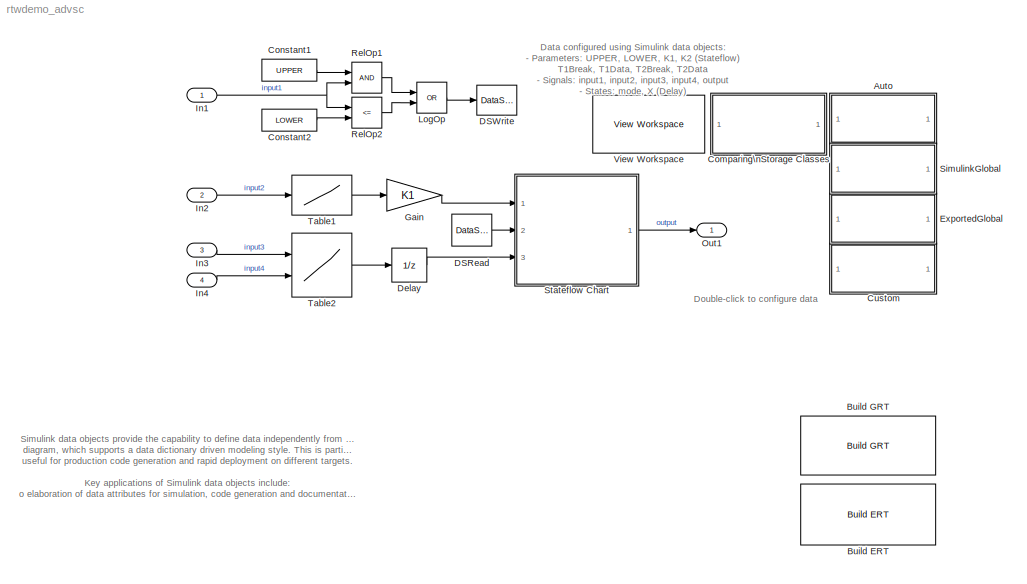
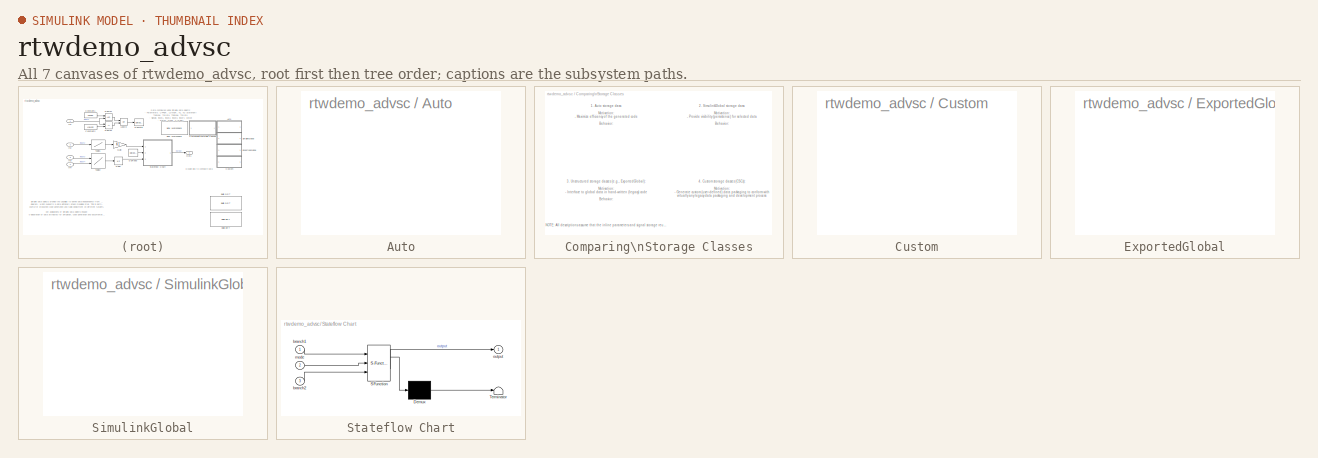
[diagram: thumbnail index - all 7 canvases of the model, root first then tree order]
MODEL rtwdemo_advsc
KIND model
CONFIG PostLoadFcn = open_system('rtwdemo_advsc/Auto');
BLOCK [SubSystem] Auto
  MaskCallbackString = |
  MaskDescription = OpenFcn creates data with the specified storage class for data packaging demo.
  MaskDisplay = disp([StorageClass, '\\nStorage Class']);
  MaskEnableString = on,on
  MaskIconFrame = on
  MaskIconOpaque = on
  MaskIconRotate = none
  MaskIconUnits = autoscale
  MaskInitialization = dispStr = 'Initialize data with\\nStorageClass: ';\ndispStr = [dispStr, StorageClass];\n
  MaskPromptString = StorageClass|DataInitFcn
  MaskStyleString = popup(Auto|SimulinkGlobal|ExportedGlobal|Custom),edit
  MaskTabNameString = ,
  MaskToolTipString = on,on
  MaskTunableValueString = off,off
  MaskType = Advanced data packaging - create data
  MaskValueString = Auto|rtwdemo_advsc_init
  MaskVarAliasString = ,
  MaskVariables = StorageClass=&1;DataInitFcn=&2;
  MaskVisibilityString = on,on
  MinAlgLoopOccurrences = off
  OpenFcn = feval(get_param(gcb, 'DataInitFcn'), get_param(gcb, 'StorageClass'));
  Ports = []
  PropExecContextAcrossSSBoundary = on
  RTWSystemCode = Auto
  TreatAsAtomicUnit = off
BLOCK [Reference] Build ERT  REF=rtwdemowidgets/Build ERT
  Ports = []
  ShowPortLabels = on
  SourceBlock = rtwdemowidgets/Build ERT
  attrib_overrides = {}
BLOCK [Reference] Build GRT  REF=rtwdemowidgets/Build GRT
  Ports = []
  ShowPortLabels = on
  SourceBlock = rtwdemowidgets/Build GRT
  attrib_overrides = {}
BLOCK [SubSystem] Comparing\nStorage Classes
  MaskDisplay = disp(['Compare the\\noptions ..', '.\\n(double-click)']);
  MaskIconFrame = on
  MaskIconOpaque = on
  MaskIconRotate = none
  MaskIconUnits = autoscale
  MinAlgLoopOccurrences = off
  Ports = []
  PropExecContextAcrossSSBoundary = on
  RTWSystemCode = Auto
  TreatAsAtomicUnit = off
BLOCK [Constant] Constant1
  Value = UPPER
BLOCK [Constant] Constant2
  Value = LOWER
BLOCK [SubSystem] Custom
  MaskCallbackString = |
  MaskDescription = OpenFcn creates data with the specified storage class for data packaging demo.
  MaskDisplay = disp([StorageClass, '\\nStorage Class']);
  MaskEnableString = on,on
  MaskIconFrame = on
  MaskIconOpaque = on
  MaskIconRotate = none
  MaskIconUnits = autoscale
  MaskInitialization = dispStr = 'Initialize data with\\nStorageClass: ';\ndispStr = [dispStr, StorageClass];\n
  MaskPromptString = StorageClass|DataInitFcn
  MaskStyleString = popup(Auto|SimulinkGlobal|ExportedGlobal|Custom),edit
  MaskTabNameString = ,
  MaskToolTipString = on,on
  MaskTunableValueString = off,off
  MaskType = Advanced data packaging - create data
  MaskValueString = Custom|rtwdemo_advsc_init
  MaskVarAliasString = ,
  MaskVariables = StorageClass=&1;DataInitFcn=&2;
  MaskVisibilityString = on,on
  MinAlgLoopOccurrences = off
  OpenFcn = feval(get_param(gcb, 'DataInitFcn'), get_param(gcb, 'StorageClass'));
  Ports = []
  PropExecContextAcrossSSBoundary = on
  RTWSystemCode = Auto
  TreatAsAtomicUnit = off
BLOCK [DataStoreRead] DSRead
  DataStoreName = mode
  DialogController = Simulink.DDGSource
  SampleTime = 1
BLOCK [DataStoreWrite] DSWrite
  DataStoreName = mode
  DialogController = Simulink.DDGSource
  SampleTime = -1
BLOCK [UnitDelay] Delay
  StateIdentifier = X
  StateMustResolveToSignalObject = on
BLOCK [SubSystem] ExportedGlobal
  MaskCallbackString = |
  MaskDescription = OpenFcn creates data with the specified storage class for data packaging demo.
  MaskDisplay = disp([StorageClass, '\\nStorage Class']);
  MaskEnableString = on,on
  MaskIconFrame = on
  MaskIconOpaque = on
  MaskIconRotate = none
  MaskIconUnits = autoscale
  MaskInitialization = dispStr = 'Initialize data with\\nStorageClass: ';\ndispStr = [dispStr, StorageClass];\n
  MaskPromptString = StorageClass|DataInitFcn
  MaskStyleString = popup(Auto|SimulinkGlobal|ExportedGlobal|Custom),edit
  MaskTabNameString = ,
  MaskToolTipString = on,on
  MaskTunableValueString = off,off
  MaskType = Advanced data packaging - create data
  MaskValueString = ExportedGlobal|rtwdemo_advsc_init
  MaskVarAliasString = ,
  MaskVariables = StorageClass=&1;DataInitFcn=&2;
  MaskVisibilityString = on,on
  MinAlgLoopOccurrences = off
  OpenFcn = feval(get_param(gcb, 'DataInitFcn'), get_param(gcb, 'StorageClass'));
  Ports = []
  PropExecContextAcrossSSBoundary = on
  RTWSystemCode = Auto
  TreatAsAtomicUnit = off
BLOCK [Gain] Gain
  Gain = K1
BLOCK [Inport] In1
  IconDisplay = Port number
  LatchInput = off
  Port = 1
  PortDimensions = 1
  SampleTime = 1
BLOCK [Inport] In2
  IconDisplay = Port number
  LatchInput = off
  Port = 2
  PortDimensions = 1
BLOCK [Inport] In3
  IconDisplay = Port number
  LatchInput = off
  Port = 3
  PortDimensions = 1
BLOCK [Inport] In4
  IconDisplay = Port number
  LatchInput = off
  Port = 4
  PortDimensions = 1
BLOCK [Logic] LogOp
  Operator = OR
  Ports = [2, 1]
BLOCK [Outport] Out1
  BusOutputAsStruct = off
  IconDisplay = Port number
BLOCK [RelationalOperator] RelOp1
BLOCK [RelationalOperator] RelOp2
  Operator = <=
BLOCK [SubSystem] SimulinkGlobal
  MaskCallbackString = |
  MaskDescription = OpenFcn creates data with the specified storage class for data packaging demo.
  MaskDisplay = disp([StorageClass, '\\nStorage Class']);
  MaskEnableString = on,on
  MaskIconFrame = on
  MaskIconOpaque = on
  MaskIconRotate = none
  MaskIconUnits = autoscale
  MaskInitialization = dispStr = 'Initialize data with\\nStorageClass: ';\ndispStr = [dispStr, StorageClass];\n
  MaskPromptString = StorageClass|DataInitFcn
  MaskStyleString = popup(Auto|SimulinkGlobal|ExportedGlobal|Custom),edit
  MaskTabNameString = ,
  MaskToolTipString = on,on
  MaskTunableValueString = off,off
  MaskType = Advanced data packaging - create data
  MaskValueString = SimulinkGlobal|rtwdemo_advsc_init
  MaskVarAliasString = ,
  MaskVariables = StorageClass=&1;DataInitFcn=&2;
  MaskVisibilityString = on,on
  MinAlgLoopOccurrences = off
  OpenFcn = feval(get_param(gcb, 'DataInitFcn'), get_param(gcb, 'StorageClass'));
  Ports = []
  PropExecContextAcrossSSBoundary = on
  RTWSystemCode = Auto
  TreatAsAtomicUnit = off
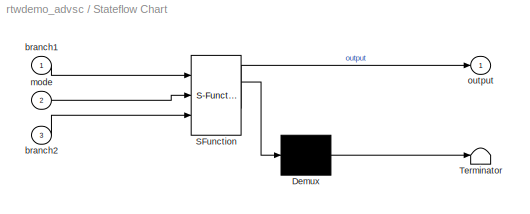
BLOCK [SubSystem] Stateflow Chart
  MaskDescription = Stateflow diagram
  MaskDisplay = plot(sf('Private','sfblk','xIcon'),sf('Private','sfblk','yIcon'));text(0.5,0,sf('Private', 'sfblk', 'tIcon'),'HorizontalAl','Center','VerticalAl','Bottom');
  MaskIconFrame = off
  MaskIconOpaque = off
  MaskIconRotate = none
  MaskIconUnits = autoscale
  MaskSelfModifiable = on
  MaskType = Stateflow
  MinAlgLoopOccurrences = off
  PermitHierarchicalResolution = ParametersOnly
  Ports = [3, 1]
  PropExecContextAcrossSSBoundary = on
  RTWSystemCode = Auto
  TreatAsAtomicUnit = off
BLOCK [Demux] Stateflow Chart/ Demux 
  Outputs = 1
  Ports = [1, 1]
BLOCK [S-Function] Stateflow Chart/ SFunction 
  FunctionName = sf_sfun
  Parameters = K2
  PortCounts = [3 2]
  Ports = [3, 2]
  Tag = Stateflow S-Function rtwdemo_advsc 1
BLOCK [Terminator] Stateflow Chart/ Terminator 
BLOCK [Inport] Stateflow Chart/branch1
  IconDisplay = Port number
  LatchInput = off
  Port = 1
BLOCK [Inport] Stateflow Chart/branch2
  IconDisplay = Port number
  LatchInput = off
  Port = 3
BLOCK [Inport] Stateflow Chart/mode
  IconDisplay = Port number
  LatchInput = off
  Port = 2
BLOCK [Outport] Stateflow Chart/output
  BusOutputAsStruct = off
  IconDisplay = Port number
BLOCK [Lookup] Table1
  DialogController = Simulink.DDGSource
  InputValues = T1Break
  OutputValues = T1Data
BLOCK [Lookup2D] Table2
  ColumnIndex = T2Break
  DialogController = Simulink.DDGSource
  OutScaling = 2^-10
  OutputValues = T2Data
  RowIndex = T2Break
  SaturateOnIntegerOverflow = off
BLOCK [Reference] View Workspace  REF=rtwdemowidgets/View Workspace
  Ports = []
  ShowPortLabels = on
  SourceBlock = rtwdemowidgets/View Workspace
ANNOTATION (root): Data configured using Simulink data objects:\n- Parameters: UPPER, LOWER, K1, K2 (Stateflow)\n T1Break, T1Data, T2Break, T2Data\n- Signals: input1, input2, input3, input4, output\n- States: mode, X (Delay)
ANNOTATION (root): Double-click to configure data
ANNOTATION (root): Simulink data objects provide the capability to define data independently from the \ndiagram, which supports a data dictionary driven modeling style. This is particularly \nuseful for production code generation and rapid deployment on different targets.\n\nKey applications of Simulink data objects include:\no elaboration of data attributes for simulation, code generation and documentation \no cont...<+395ch>
ANNOTATION Comparing\nStorage Classes: 1. Auto storage class:\n\nMotivation:\n- Maximize efficiency of the generated code\n\nBehavior:\n- Parameters are inlined and intermediate signals are eliminated\n- All states and root-level I/O are members of persistent data structures\n\nAdvantages:\n- Optimized code generation\n- Default behavior when optimizations enabled (easy to use)\n\nDisadvantages:\n- Parameters and signals do not appear ...<+37ch>
ANNOTATION Comparing\nStorage Classes: 2. SimulinkGlobal storage class:\n\nMotivation:\n- Provide visibility (persistence) for selected data\n\nBehavior:\n- Select parameters and signals are members of persistent data structures \n- All states and root-level I/O are members of persistent data structures\n\nAdvantages:\n- Only increase memory usage for data of interest\n- Provides visibility to data without limiting modeling flexibility...<+79ch>
ANNOTATION Comparing\nStorage Classes: 3. Unstructured storage classes (e.g., ExportedGlobal):\n\nMotivation:\n- Interface to global data in hand-written (legacy) code\n\nBehavior:\n- Select parameters and signals are global, unstructured variables\n- Select states and root-level I/O are global, unstructured variables \n\nAdvantages:\n- Data names are preserved in the generated code\n\nDisadvantages:\n- Imposes certain modeling restric...<+48ch>
ANNOTATION Comparing\nStorage Classes: 4. Custom storage classes (CSCs):\n\nMotivation:\n- Generate custom (user-defined) data packaging to conform with \n virtually any legacy data packaging and development process\n\nBehavior:\n- Representation determined by custom storage class definitions\n\nAdvantages:\n- Full control over location, packaging and format of data\n- Control over comments and pragmas (compiler directives)\n\nDisadvan...<+88ch>
ANNOTATION Comparing\nStorage Classes: NOTE: All descriptions assume that the inline parameters and signal storage reuse optimizations are ON.
LINE Constant1:1 -> RelOp1:1
LINE Constant2:1 -> RelOp2:2
LINE DSRead:1 -> Stateflow Chart:2
LINE Delay:1 -> Stateflow Chart:3
LINE Gain:1 -> Stateflow Chart:1
NET In1:1 -> RelOp1:2, RelOp2:1
LINE In2:1 -> Table1:1
LINE In3:1 -> Table2:1
LINE In4:1 -> Table2:2
LINE LogOp:1 -> DSWrite:1
LINE RelOp1:1 -> LogOp:1
LINE RelOp2:1 -> LogOp:2
LINE Stateflow Chart/ Demux :1 -> Stateflow Chart/ Terminator :1
LINE Stateflow Chart/ SFunction :1 -> Stateflow Chart/ Demux :1
LINE Stateflow Chart/ SFunction :2 -> Stateflow Chart/output:1
LINE Stateflow Chart/branch1:1 -> Stateflow Chart/ SFunction :1
LINE Stateflow Chart/branch2:1 -> Stateflow Chart/ SFunction :3
LINE Stateflow Chart/mode:1 -> Stateflow Chart/ SFunction :2
LINE Stateflow Chart:1 -> Out1:1
LINE Table1:1 -> Gain:1
LINE Table2:1 -> Delay:1
note: NET lines group one-source signal fan-out (src -> all destinations, sorted); 1:1 wires keep LINE
CHART Stateflow Chart states=1 transitions=5
  STATE_LABEL 'This chart is acting as an if-else condition,\\n    with the result multiplied by K2.\\nUsing a Simulink switch (or if-action) and gain block,\\n    results in virtually identical code.'
